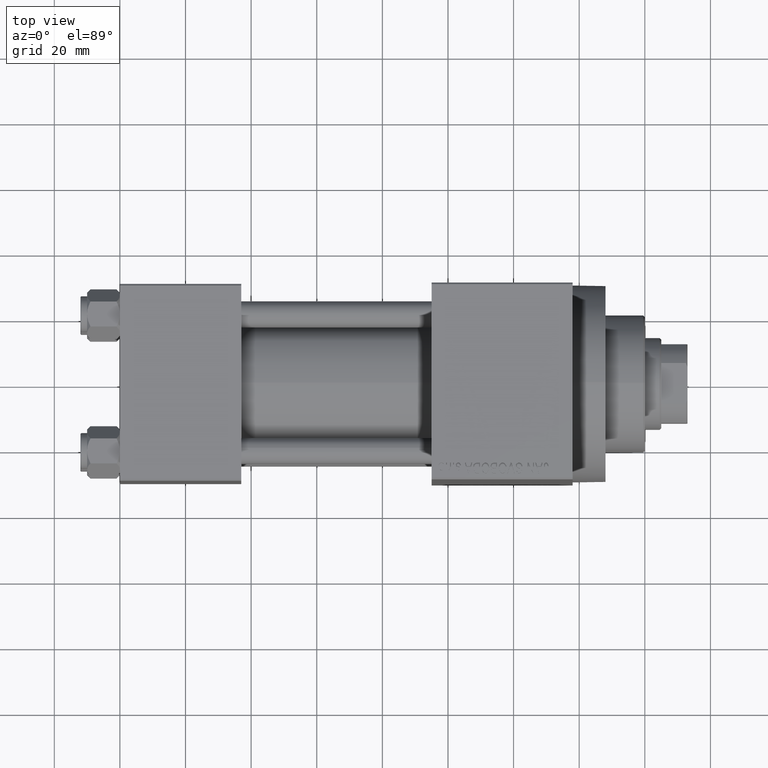
[diagram: clean part render]
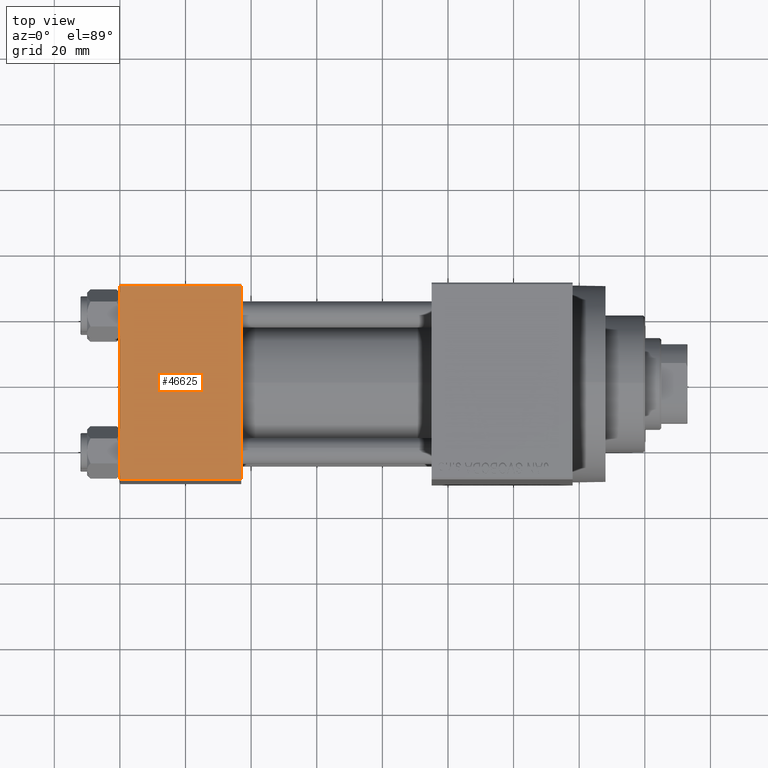
[diagram: same view with one face highlighted and labeled with its STEP entity id]
A machine part, top view. The second image highlights one B-rep face of the part: STEP entity #46625.
In plain terms, the highlighted planar face has unit normal (0, 0, -1).
Its self-contained STEP definition (entity closure, byte-faithful):
#436 = EDGE_CURVE ( 'NONE', #31350, #25447, #4844, .T. ) ;
#844 = ORIENTED_EDGE ( 'NONE', *, *, #19750, .T. ) ;
#1397 = CARTESIAN_POINT ( 'NONE',  ( 37.00000000000000000, -29.49999999999998579, 29.99999999999999289 ) ) ;
#2835 = VECTOR ( 'NONE', #30051, 1000.000000000000000 ) ;
#4844 = LINE ( 'NONE', #15863, #38597 ) ;
#4870 = CARTESIAN_POINT ( 'NONE',  ( 0.000000000000000000, 29.99999999999999289, 30.00000000000000000 ) ) ;
#10913 = ORIENTED_EDGE ( 'NONE', *, *, #13412, .F. ) ;
#11102 = FACE_OUTER_BOUND ( 'NONE', #33496, .T. ) ;
#13412 = EDGE_CURVE ( 'NONE', #31350, #22926, #22878, .T. ) ;
#14324 = ORIENTED_EDGE ( 'NONE', *, *, #436, .T. ) ;
#14779 = VERTEX_POINT ( 'NONE', #31312 ) ;
#15863 = CARTESIAN_POINT ( 'NONE',  ( 0.000000000000000000, 29.49999999999999289, 30.00000000000000000 ) ) ;
#16922 = CARTESIAN_POINT ( 'NONE',  ( 0.000000000000000000, 29.49999999999999289, 30.00000000000000000 ) ) ;
#18309 = PLANE ( 'NONE',  #41851 ) ;
#19013 = LINE ( 'NONE', #4870, #27375 ) ;
#19476 = DIRECTION ( 'NONE',  ( 0.000000000000000000, -1.000000000000000000, -1.156482317317871725E-16 ) ) ;
#19750 = EDGE_CURVE ( 'NONE', #14779, #22926, #38929, .T. ) ;
#20536 = CARTESIAN_POINT ( 'NONE',  ( 37.00000000000000000, -29.50000000000000000, 29.99999999999999289 ) ) ;
#21428 = DIRECTION ( 'NONE',  ( 0.000000000000000000, 1.156482317317871725E-16, -1.000000000000000000 ) ) ;
#21655 = CARTESIAN_POINT ( 'NONE',  ( 37.00000000000000000, 29.99999999999999289, 30.00000000000000000 ) ) ;
#22878 = LINE ( 'NONE', #45078, #2835 ) ;
#22926 = VERTEX_POINT ( 'NONE', #1397 ) ;
#25447 = VERTEX_POINT ( 'NONE', #16922 ) ;
#27375 = VECTOR ( 'NONE', #19476, 1000.000000000000000 ) ;
#29292 = DIRECTION ( 'NONE',  ( 0.000000000000000000, 1.000000000000000000, 1.156482317317871725E-16 ) ) ;
#30051 = DIRECTION ( 'NONE',  ( 0.000000000000000000, -1.000000000000000000, -1.156482317317871725E-16 ) ) ;
#30449 = DIRECTION ( 'NONE',  ( -1.000000000000000000, 0.000000000000000000, 0.000000000000000000 ) ) ;
#31312 = CARTESIAN_POINT ( 'NONE',  ( 0.000000000000000000, -29.49999999999998579, 29.99999999999999289 ) ) ;
#31350 = VERTEX_POINT ( 'NONE', #42971 ) ;
#33496 = EDGE_LOOP ( 'NONE', ( #42459, #844, #10913, #14324 ) ) ;
#34222 = VECTOR ( 'NONE', #35337, 1000.000000000000000 ) ;
#35337 = DIRECTION ( 'NONE',  ( 1.000000000000000000, 0.000000000000000000, 0.000000000000000000 ) ) ;
#38597 = VECTOR ( 'NONE', #30449, 1000.000000000000000 ) ;
#38929 = LINE ( 'NONE', #20536, #34222 ) ;
#41851 = AXIS2_PLACEMENT_3D ( 'NONE', #21655, #21428, #29292 ) ;
#42459 = ORIENTED_EDGE ( 'NONE', *, *, #46736, .T. ) ;
#42971 = CARTESIAN_POINT ( 'NONE',  ( 37.00000000000000000, 29.49999999999999289, 30.00000000000000000 ) ) ;
#45078 = CARTESIAN_POINT ( 'NONE',  ( 37.00000000000000000, 29.99999999999999289, 30.00000000000000000 ) ) ;
#46625 = ADVANCED_FACE ( 'NONE', ( #11102 ), #18309, .F. ) ;
#46736 = EDGE_CURVE ( 'NONE', #25447, #14779, #19013, .T. ) ;